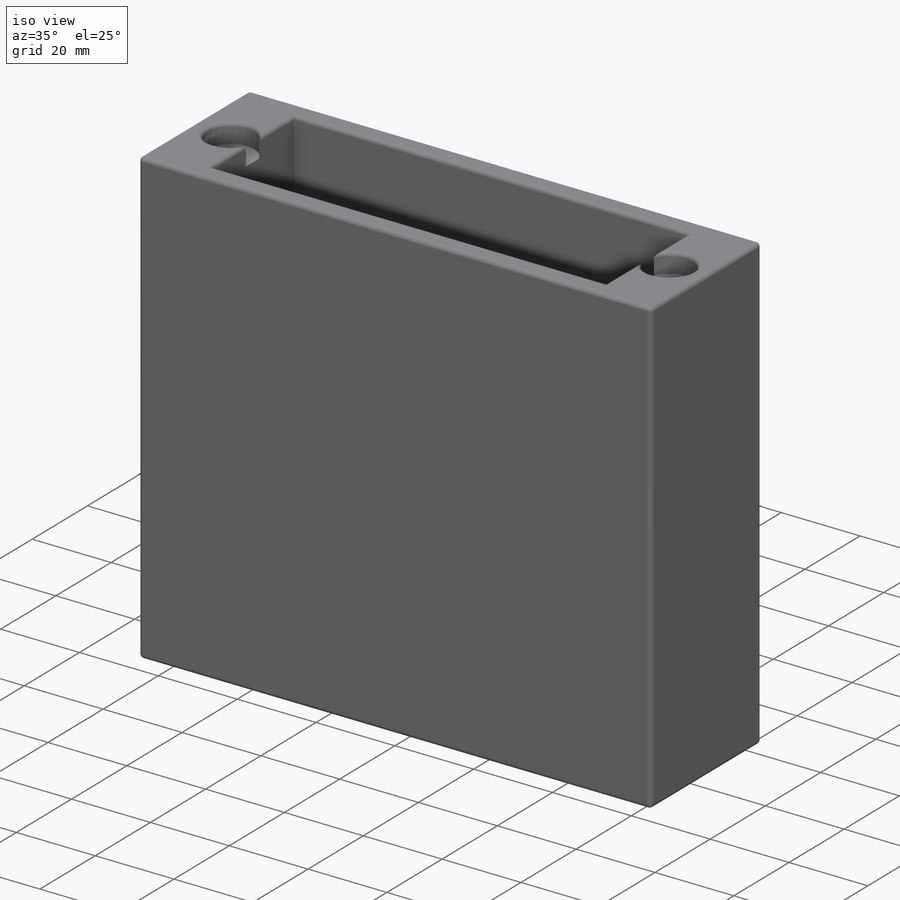
[diagram: iso view]
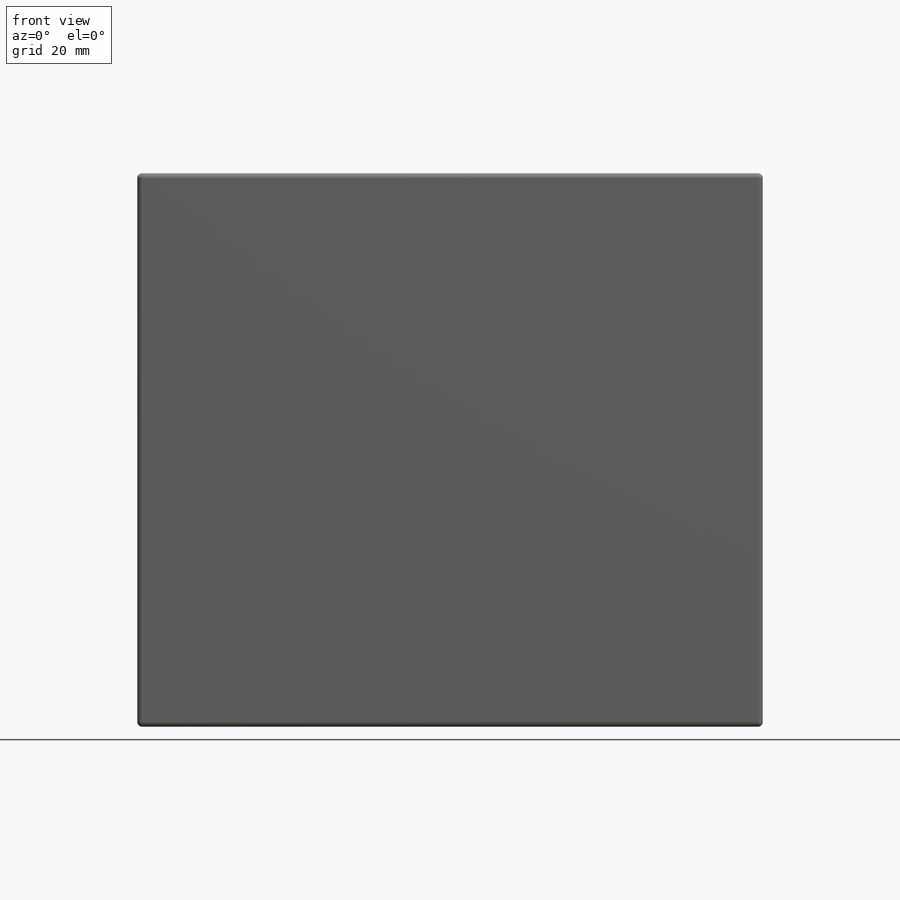
[diagram: front view]
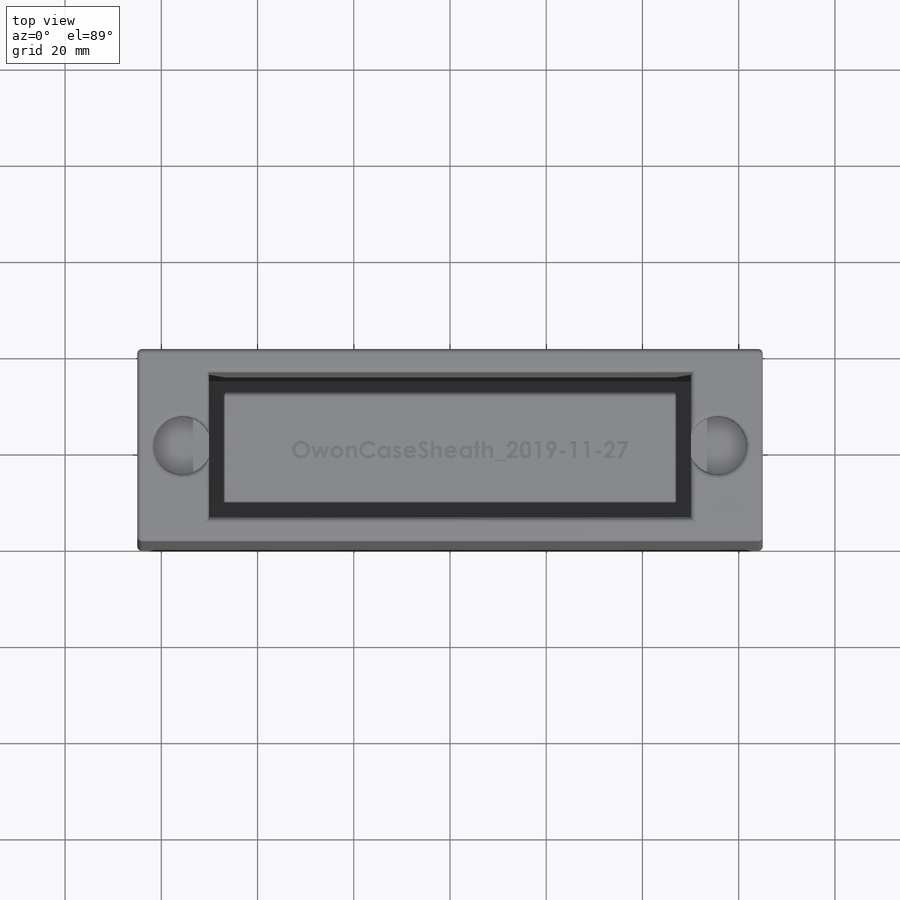
[diagram: top view]
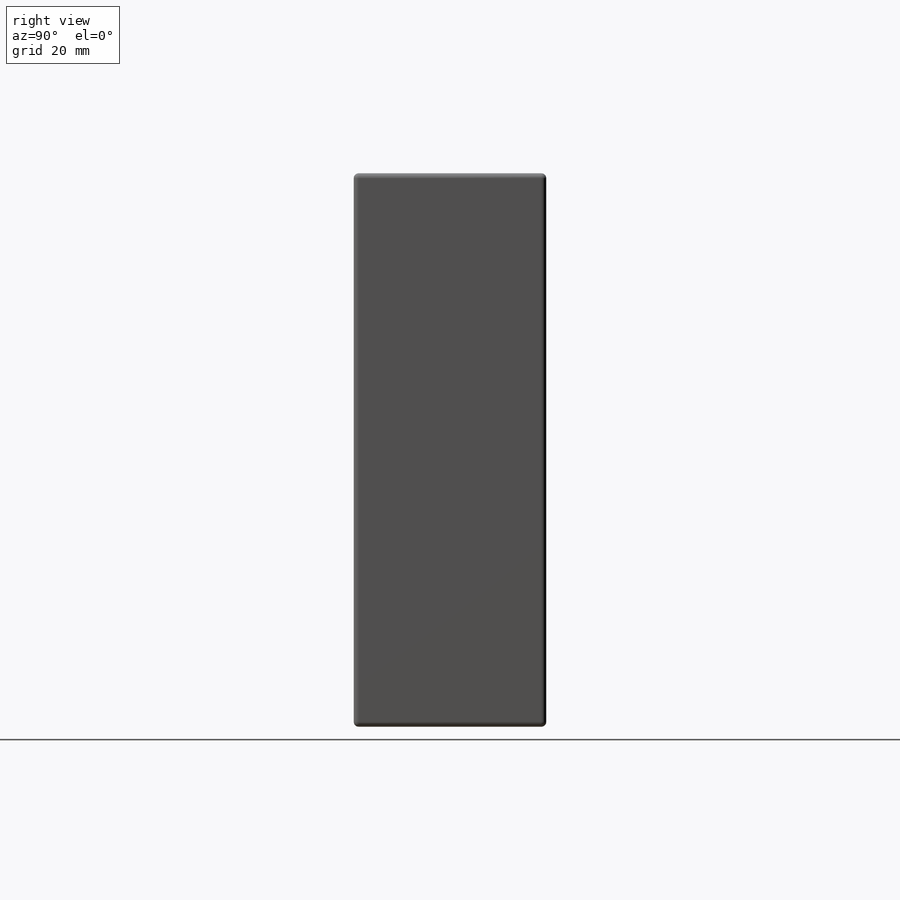
[diagram: right view]
SOLIDWORKS PART (.sldprt)
format: sldprt  version: not decoded by parser v0  size: 644,608 bytes
history: native  units: mm
features: sketch x6, cut_extrude x4, extrude x2, material x1, fillet x1 (+13 scaffold rows collapsed)
feature tree (27):
  scaffold x13  (default folders/planes/origin — collapsed)
  material  "Material <not specified>"
  sketch  "Sketch1"  dims[D1=130.0mm D2=40.0mm]
  extrude  "Boss-Extrude1"  Depth=110mm
  sketch  "Sketch2"  dims[D1=100.2mm D2=30.2mm]
  cut_extrude  "Cut-Extrude1"  Depth=101mm
  extrude  "Boss-Extrude2"  [1 undecoded]
  sketch  "Sketch1<2>"  dims[D1=5.0mm]
  cut_extrude  "Cut-Extrude4"  [1 undecoded]
  sketch  "Sketch2<4>"  dims[D1=5.0mm]
  sketch  "Sketch5"  dims[D1=5.5mm D2=5.5mm]
  cut_extrude  "Cut-Extrude7"  Depth=5mm
  fillet  "Fillet1"  Radius=1mm
  sketch  "Sketch6"
  cut_extrude  "Cut-Extrude8"  Depth=1mm
decode coverage: 10 of 13 modeling features carry decoded parameters
note: 2 parameter values undecoded
note: suppression state not decoded; provenance and decode notes live in map.json
